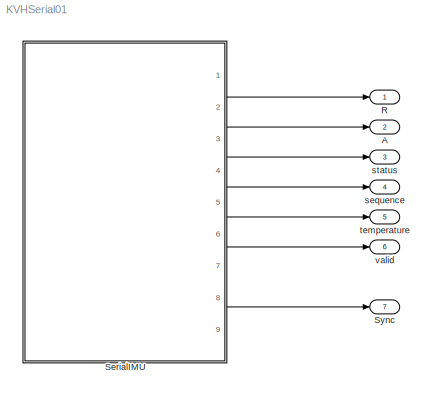
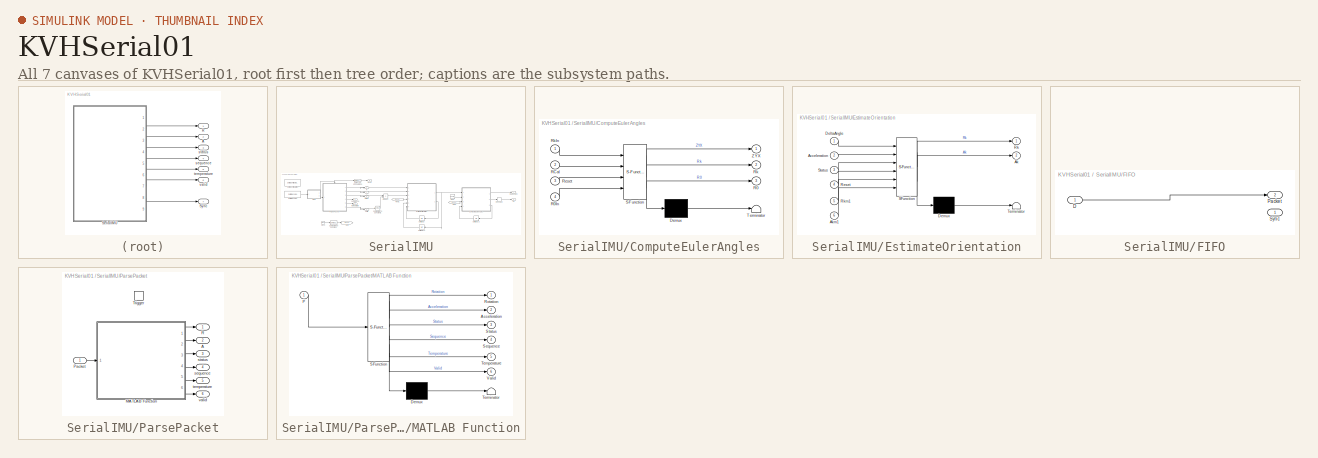
[diagram: thumbnail index - all 7 canvases of the model, root first then tree order]
MODEL KVHSerial01
KIND model
BLOCK [Outport] A
  IconDisplay = Port number
  Port = 2
  SID = 3
BLOCK [Outport] R
  IconDisplay = Port number
  SID = 2
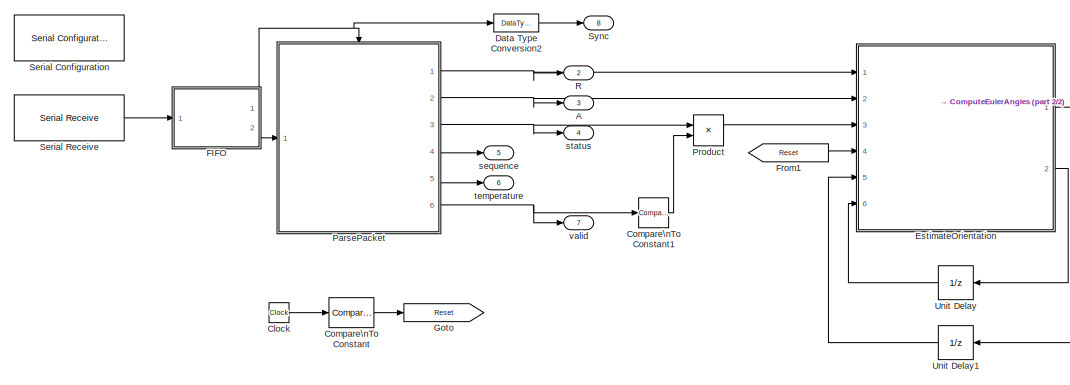
[diagram: SerialIMU - part 1/2, left side, full height]
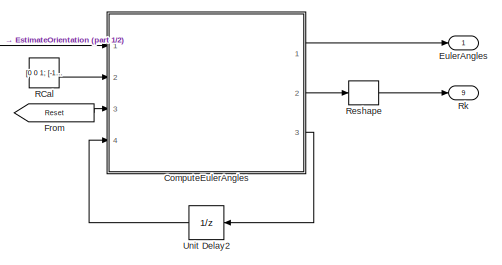
[diagram: SerialIMU - part 2/2, middle right region]
BLOCK [SubSystem] SerialIMU
  AncestorBlock = marlo_lib_v01/SerialIMU
  FunctionWithSeparateData = off
  MaskHideContents = off
  MinAlgLoopOccurrences = off
  Opaque = off
  Ports = [0, 9]
  PropExecContextOutsideSubsystem = off
  RTWSystemCode = Auto
  RequestExecContextInheritance = off
  SID = 1
BLOCK [Outport] SerialIMU/A
  IconDisplay = Port number
  Port = 3
  SID = 1:5831
BLOCK [Clock] SerialIMU/Clock
  SID = 1:5880
BLOCK [Reference] SerialIMU/Compare\nTo Constant  REF=simulink/Logic and Bit\nOperations/Compare\nTo Constant
  OutDataTypeStr = uint8
  Ports = [1, 1]
  SID = 1:5881
  SourceBlock = simulink/Logic and Bit\nOperations/Compare\nTo Constant
  SourceType = Compare To Constant
  ZeroCross = on
  const = 0.2
  relop = <
BLOCK [Reference] SerialIMU/Compare\nTo Constant1  REF=simulink/Logic and Bit\nOperations/Compare\nTo Constant
  OutDataTypeStr = uint8
  Ports = [1, 1]
  SID = 1:5882
  SourceBlock = simulink/Logic and Bit\nOperations/Compare\nTo Constant
  SourceType = Compare To Constant
  ZeroCross = on
  const = 1
  relop = ==
BLOCK [SubSystem] SerialIMU/ComputeEulerAngles
  ErrorFcn = Stateflow.Translate.translate
  FunctionWithSeparateData = off
  MaskDescription = Embedded MATLAB block
  MaskDisplay = bgColor = Simulink.Root.ColorString2Rgb(get_param(gcbh, 'BackgroundColor')); image(imread('private/eml_membrane_16.png','png','BackgroundColor',bgColor(1:3)),'center'); disp([10 10 'fcn']);
  MaskHideContents = off
  MaskIconFrame = on
  MaskIconOpaque = off
  MaskIconRotate = none
  MaskIconUnits = normalized
  MaskPortRotate = default
  MaskSelfModifiable = on
  MaskType = Stateflow
  MinAlgLoopOccurrences = off
  Opaque = off
  PermitHierarchicalResolution = ExplicitOnly
  Ports = [4, 3]
  PropExecContextOutsideSubsystem = off
  RTWSystemCode = Auto
  RequestExecContextInheritance = off
  SFBlockType = MATLAB Function
  SID = 1:5883
  TreatAsAtomicUnit = on
BLOCK [Demux] SerialIMU/ComputeEulerAngles/ Demux 
  Outputs = 1
  Ports = [1, 1]
  SID = 1:5883::20
BLOCK [S-Function] SerialIMU/ComputeEulerAngles/ SFunction 
  EnableBusSupport = on
  FunctionName = sf_sfun
  PortCounts = [4 4]
  Ports = [4, 4]
  SID = 1:5883::19
  Tag = Stateflow S-Function KVHSerial01 1
BLOCK [Terminator] SerialIMU/ComputeEulerAngles/ Terminator 
  SID = 1:5883::22
BLOCK [Outport] SerialIMU/ComputeEulerAngles/R0
  IconDisplay = Port number
  Port = 3
  SID = 1:5883::32
BLOCK [Inport] SerialIMU/ComputeEulerAngles/R0In
  IconDisplay = Port number
  Port = 4
  SID = 1:5883::30
BLOCK [Inport] SerialIMU/ComputeEulerAngles/RCal
  IconDisplay = Port number
  Port = 2
  SID = 1:5883::1
BLOCK [Inport] SerialIMU/ComputeEulerAngles/Reset
  IconDisplay = Port number
  Port = 3
  SID = 1:5883::24
BLOCK [Outport] SerialIMU/ComputeEulerAngles/Rk
  IconDisplay = Port number
  Port = 2
  SID = 1:5883::34
BLOCK [Inport] SerialIMU/ComputeEulerAngles/RkIn
  IconDisplay = Port number
  SID = 1:5883::33
BLOCK [Outport] SerialIMU/ComputeEulerAngles/ZYX
  IconDisplay = Port number
  SID = 1:5883::27
BLOCK [DataTypeConversion] SerialIMU/Data Type Conversion2
  OutDataTypeStr = double
  RndMeth = Floor
  SID = 1:5869
  SaturateOnIntegerOverflow = off
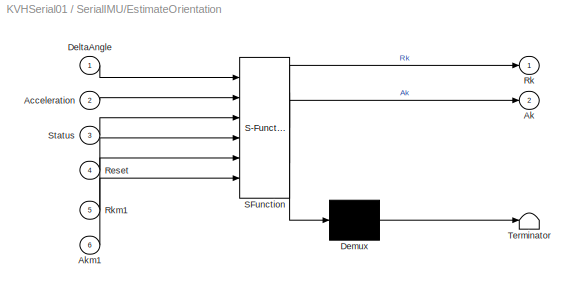
BLOCK [SubSystem] SerialIMU/EstimateOrientation
  ErrorFcn = Stateflow.Translate.translate
  FunctionWithSeparateData = off
  MaskDescription = Embedded MATLAB block
  MaskDisplay = bgColor = Simulink.Root.ColorString2Rgb(get_param(gcbh, 'BackgroundColor')); image(imread('private/eml_membrane_16.png','png','BackgroundColor',bgColor(1:3)),'center'); disp([10 10 'fcn']);
  MaskHideContents = off
  MaskIconFrame = on
  MaskIconOpaque = off
  MaskIconRotate = none
  MaskIconUnits = normalized
  MaskPortRotate = default
  MaskSelfModifiable = on
  MaskType = Stateflow
  MinAlgLoopOccurrences = off
  Opaque = off
  PermitHierarchicalResolution = ExplicitOnly
  Ports = [6, 2]
  PropExecContextOutsideSubsystem = off
  RTWSystemCode = Auto
  RequestExecContextInheritance = off
  SFBlockType = MATLAB Function
  SID = 1:5884
  TreatAsAtomicUnit = on
BLOCK [Demux] SerialIMU/EstimateOrientation/ Demux 
  Outputs = 1
  Ports = [1, 1]
  SID = 1:5884::20
BLOCK [S-Function] SerialIMU/EstimateOrientation/ SFunction 
  EnableBusSupport = on
  FunctionName = sf_sfun
  PortCounts = [6 3]
  Ports = [6, 3]
  SID = 1:5884::19
  Tag = Stateflow S-Function KVHSerial01 2
BLOCK [Terminator] SerialIMU/EstimateOrientation/ Terminator 
  SID = 1:5884::22
BLOCK [Inport] SerialIMU/EstimateOrientation/Acceleration
  IconDisplay = Port number
  Port = 2
  SID = 1:5884::1
BLOCK [Outport] SerialIMU/EstimateOrientation/Ak
  IconDisplay = Port number
  Port = 2
  SID = 1:5884::27
BLOCK [Inport] SerialIMU/EstimateOrientation/Akm1
  IconDisplay = Port number
  Port = 6
  SID = 1:5884::26
BLOCK [Inport] SerialIMU/EstimateOrientation/DeltaAngle
  IconDisplay = Port number
  SID = 1:5884::23
BLOCK [Inport] SerialIMU/EstimateOrientation/Reset
  IconDisplay = Port number
  Port = 4
  SID = 1:5884::24
BLOCK [Outport] SerialIMU/EstimateOrientation/Rk
  IconDisplay = Port number
  SID = 1:5884::5
BLOCK [Inport] SerialIMU/EstimateOrientation/Rkm1
  IconDisplay = Port number
  Port = 5
  SID = 1:5884::25
BLOCK [Inport] SerialIMU/EstimateOrientation/Status
  IconDisplay = Port number
  Port = 3
  SID = 1:5884::28
BLOCK [Outport] SerialIMU/EulerAngles
  IconDisplay = Port number
  SID = 1:5898
BLOCK [SubSystem] SerialIMU/FIFO
  FunctionWithSeparateData = off
  MaskHideContents = off
  MinAlgLoopOccurrences = off
  Opaque = off
  Ports = [1, 2]
  PropExecContextOutsideSubsystem = off
  RTWSystemCode = Auto
  RequestExecContextInheritance = off
  SID = 1:5846
BLOCK [Inport] SerialIMU/FIFO/D
  IconDisplay = Port number
  SID = 1:5847
BLOCK [Outport] SerialIMU/FIFO/Packet
  IconDisplay = Port number
  Port = 2
  SID = 1:5848
BLOCK [Outport] SerialIMU/FIFO/Sync
  IconDisplay = Port number
  SID = 1:5852
BLOCK [From] SerialIMU/From
  GotoTag = Reset
  SID = 1:5885
BLOCK [From] SerialIMU/From1
  GotoTag = Reset
  SID = 1:5890
BLOCK [Goto] SerialIMU/Goto
  GotoTag = Reset
  SID = 1:5891
BLOCK [SubSystem] SerialIMU/ParsePacket
  FunctionWithSeparateData = off
  MaskHideContents = off
  MinAlgLoopOccurrences = off
  Opaque = off
  Ports = [1, 6, 0, 1]
  PropExecContextOutsideSubsystem = off
  RTWSystemCode = Auto
  RequestExecContextInheritance = off
  SID = 1:5857
BLOCK [Outport] SerialIMU/ParsePacket/A
  IconDisplay = Port number
  Port = 2
  SID = 1:5859
BLOCK [SubSystem] SerialIMU/ParsePacket/MATLAB Function
  ErrorFcn = Stateflow.Translate.translate
  FunctionWithSeparateData = off
  MaskDescription = Embedded MATLAB block
  MaskDisplay = bgColor = Simulink.Root.ColorString2Rgb(get_param(gcbh, 'BackgroundColor')); image(imread('private/eml_membrane_16.png','png','BackgroundColor',bgColor(1:3)),'center'); disp([10 10 'KVHParsePacket']);
  MaskHideContents = off
  MaskIconFrame = on
  MaskIconOpaque = off
  MaskIconRotate = none
  MaskIconUnits = normalized
  MaskPortRotate = default
  MaskSelfModifiable = on
  MaskType = Stateflow
  MinAlgLoopOccurrences = off
  Opaque = off
  PermitHierarchicalResolution = ExplicitOnly
  Ports = [1, 6]
  PropExecContextOutsideSubsystem = off
  RTWSystemCode = Auto
  RequestExecContextInheritance = off
  SFBlockType = MATLAB Function
  SID = 1:5826
  TreatAsAtomicUnit = on
BLOCK [Demux] SerialIMU/ParsePacket/MATLAB Function/ Demux 
  Outputs = 1
  Ports = [1, 1]
  SID = 1:5826::26
BLOCK [S-Function] SerialIMU/ParsePacket/MATLAB Function/ SFunction 
  EnableBusSupport = on
  FunctionName = sf_sfun
  PortCounts = [1 7]
  Ports = [1, 7]
  SID = 1:5826::25
  Tag = Stateflow S-Function KVHSerial01 4
BLOCK [Terminator] SerialIMU/ParsePacket/MATLAB Function/ Terminator 
  SID = 1:5826::28
BLOCK [Outport] SerialIMU/ParsePacket/MATLAB Function/Acceleration
  IconDisplay = Port number
  Port = 2
  SID = 1:5826::23
BLOCK [Inport] SerialIMU/ParsePacket/MATLAB Function/P
  IconDisplay = Port number
  SID = 1:5826::1
BLOCK [Outport] SerialIMU/ParsePacket/MATLAB Function/Rotation
  IconDisplay = Port number
  SID = 1:5826::5
BLOCK [Outport] SerialIMU/ParsePacket/MATLAB Function/Sequence
  IconDisplay = Port number
  Port = 4
  SID = 1:5826::30
BLOCK [Outport] SerialIMU/ParsePacket/MATLAB Function/Status
  IconDisplay = Port number
  Port = 3
  SID = 1:5826::29
BLOCK [Outport] SerialIMU/ParsePacket/MATLAB Function/Temperature
  IconDisplay = Port number
  Port = 5
  SID = 1:5826::31
BLOCK [Outport] SerialIMU/ParsePacket/MATLAB Function/Valid
  IconDisplay = Port number
  Port = 6
  SID = 1:5826::24
BLOCK [Inport] SerialIMU/ParsePacket/Packet
  IconDisplay = Port number
  SID = 1:5861
BLOCK [Outport] SerialIMU/ParsePacket/R
  IconDisplay = Port number
  SID = 1:5858
BLOCK [TriggerPort] SerialIMU/ParsePacket/Trigger
  PortDimensions = 1
  Ports = []
  SID = 1:5865
  StatesWhenEnabling = held
BLOCK [Outport] SerialIMU/ParsePacket/sequence
  IconDisplay = Port number
  Port = 4
  SID = 1:5862
BLOCK [Outport] SerialIMU/ParsePacket/status
  IconDisplay = Port number
  Port = 3
  SID = 1:5860
BLOCK [Outport] SerialIMU/ParsePacket/temperature
  IconDisplay = Port number
  Port = 5
  SID = 1:5863
BLOCK [Outport] SerialIMU/ParsePacket/valid
  IconDisplay = Port number
  Port = 6
  SID = 1:5864
BLOCK [Product] SerialIMU/Product
  InputSameDT = off
  OutDataTypeStr = Inherit: Inherit via internal rule
  Ports = [2, 1]
  SID = 1:5892
  SaturateOnIntegerOverflow = off
BLOCK [Outport] SerialIMU/R
  IconDisplay = Port number
  Port = 2
  SID = 1:5830
BLOCK [Constant] SerialIMU/RCal
  SID = 1:5893
  Value = [0 0 1; [-1 -1; 1 -1]/sqrt(2) [0; 0]]'
BLOCK [Reshape] SerialIMU/Reshape
  Ports = [1, 1]
  SID = 1:5894
BLOCK [Outport] SerialIMU/Rk
  IconDisplay = Port number
  Port = 9
  SID = 1:5899
BLOCK [Reference] SerialIMU/Serial Configuration  REF=instrumentlib/Serial Configuration
  BaudRate = 460800
  ByteOrder = LittleEndian
  ComPort = COM5
  ComPortMenu = <Please select a port...>
  DataBits = 8
  FlowControl = none
  ObjConstructor = serial('COM5');
  Parity = none
  Ports = []
  Priority = -200000
  SID = 1:5841
  SourceBlock = instrumentlib/Serial Configuration
  SourceType = Serial Configuration
  StopBits = 1
  Timeout = 10
BLOCK [Reference] SerialIMU/Serial Receive  REF=instrumentlib/Serial Receive
  ActionDataUnavailable = Output last received value
  ComPort = COM5
  ComPortMenu = <Please select a port...>
  CustomValue = 0
  DataSize = 500
  DataType = uint8
  EnableBlockingMode = on
  ObjConstructor = serial('COM5');
  Ports = [0, 1]
  SID = 1:5840
  SampleTime = 0.01
  SourceBlock = instrumentlib/Serial Receive
  SourceType = Serial Receive
  Terminator = <none>
BLOCK [Outport] SerialIMU/Sync
  IconDisplay = Port number
  Port = 8
  SID = 1:5866
BLOCK [UnitDelay] SerialIMU/Unit Delay
  InputProcessing = Elements as channels (sample based)
  SID = 1:5895
  SampleTime = -1
  X0 = [0; 0; 0]
BLOCK [UnitDelay] SerialIMU/Unit Delay1
  InputProcessing = Elements as channels (sample based)
  SID = 1:5896
  SampleTime = -1
  X0 = zeros(3,3)
BLOCK [UnitDelay] SerialIMU/Unit Delay2
  InputProcessing = Elements as channels (sample based)
  SID = 1:5897
  SampleTime = -1
  X0 = zeros(3,3)
BLOCK [Outport] SerialIMU/sequence
  IconDisplay = Port number
  Port = 5
  SID = 1:5839
BLOCK [Outport] SerialIMU/status
  IconDisplay = Port number
  Port = 4
  SID = 1:5837
BLOCK [Outport] SerialIMU/temperature
  IconDisplay = Port number
  Port = 6
  SID = 1:5838
BLOCK [Outport] SerialIMU/valid
  IconDisplay = Port number
  Port = 7
  SID = 1:5832
BLOCK [Outport] Sync
  IconDisplay = Port number
  Port = 7
  SID = 10
BLOCK [Outport] sequence
  IconDisplay = Port number
  Port = 4
  SID = 5
BLOCK [Outport] status
  IconDisplay = Port number
  Port = 3
  SID = 4
BLOCK [Outport] temperature
  IconDisplay = Port number
  Port = 5
  SID = 6
BLOCK [Outport] valid
  IconDisplay = Port number
  Port = 6
  SID = 7
LINE SerialIMU/Clock:1 -> SerialIMU/Compare\nTo Constant:1
LINE SerialIMU/Compare\nTo Constant1:1 -> SerialIMU/Product:2
LINE SerialIMU/Compare\nTo Constant:1 -> SerialIMU/Goto:1
LINE SerialIMU/ComputeEulerAngles/ Demux :1 -> SerialIMU/ComputeEulerAngles/ Terminator :1
LINE SerialIMU/ComputeEulerAngles/ SFunction :1 -> SerialIMU/ComputeEulerAngles/ Demux :1
LINE SerialIMU/ComputeEulerAngles/ SFunction :2 -> SerialIMU/ComputeEulerAngles/ZYX:1
LINE SerialIMU/ComputeEulerAngles/ SFunction :3 -> SerialIMU/ComputeEulerAngles/Rk:1
LINE SerialIMU/ComputeEulerAngles/ SFunction :4 -> SerialIMU/ComputeEulerAngles/R0:1
LINE SerialIMU/ComputeEulerAngles/R0In:1 -> SerialIMU/ComputeEulerAngles/ SFunction :4
LINE SerialIMU/ComputeEulerAngles/RCal:1 -> SerialIMU/ComputeEulerAngles/ SFunction :2
LINE SerialIMU/ComputeEulerAngles/Reset:1 -> SerialIMU/ComputeEulerAngles/ SFunction :3
LINE SerialIMU/ComputeEulerAngles/RkIn:1 -> SerialIMU/ComputeEulerAngles/ SFunction :1
LINE SerialIMU/ComputeEulerAngles:1 -> SerialIMU/EulerAngles:1
LINE SerialIMU/ComputeEulerAngles:2 -> SerialIMU/Reshape:1
LINE SerialIMU/ComputeEulerAngles:3 -> SerialIMU/Unit Delay2:1
LINE SerialIMU/Data Type Conversion2:1 -> SerialIMU/Sync:1
LINE SerialIMU/EstimateOrientation/ Demux :1 -> SerialIMU/EstimateOrientation/ Terminator :1
LINE SerialIMU/EstimateOrientation/ SFunction :1 -> SerialIMU/EstimateOrientation/ Demux :1
LINE SerialIMU/EstimateOrientation/ SFunction :2 -> SerialIMU/EstimateOrientation/Rk:1
LINE SerialIMU/EstimateOrientation/ SFunction :3 -> SerialIMU/EstimateOrientation/Ak:1
LINE SerialIMU/EstimateOrientation/Acceleration:1 -> SerialIMU/EstimateOrientation/ SFunction :2
LINE SerialIMU/EstimateOrientation/Akm1:1 -> SerialIMU/EstimateOrientation/ SFunction :6
LINE SerialIMU/EstimateOrientation/DeltaAngle:1 -> SerialIMU/EstimateOrientation/ SFunction :1
LINE SerialIMU/EstimateOrientation/Reset:1 -> SerialIMU/EstimateOrientation/ SFunction :4
LINE SerialIMU/EstimateOrientation/Rkm1:1 -> SerialIMU/EstimateOrientation/ SFunction :5
LINE SerialIMU/EstimateOrientation/Status:1 -> SerialIMU/EstimateOrientation/ SFunction :3
NET SerialIMU/EstimateOrientation:1 -> SerialIMU/ComputeEulerAngles:1, SerialIMU/Unit Delay1:1
LINE SerialIMU/EstimateOrientation:2 -> SerialIMU/Unit Delay:1
LINE SerialIMU/FIFO/D:1 -> SerialIMU/FIFO/Packet:1
NET SerialIMU/FIFO:1 -> SerialIMU/Data Type Conversion2:1, SerialIMU/ParsePacket:trigger
LINE SerialIMU/FIFO:2 -> SerialIMU/ParsePacket:1
LINE SerialIMU/From1:1 -> SerialIMU/EstimateOrientation:4
LINE SerialIMU/From:1 -> SerialIMU/ComputeEulerAngles:3
LINE SerialIMU/ParsePacket/MATLAB Function/ Demux :1 -> SerialIMU/ParsePacket/MATLAB Function/ Terminator :1
LINE SerialIMU/ParsePacket/MATLAB Function/ SFunction :1 -> SerialIMU/ParsePacket/MATLAB Function/ Demux :1
LINE SerialIMU/ParsePacket/MATLAB Function/ SFunction :2 -> SerialIMU/ParsePacket/MATLAB Function/Rotation:1
LINE SerialIMU/ParsePacket/MATLAB Function/ SFunction :3 -> SerialIMU/ParsePacket/MATLAB Function/Acceleration:1
LINE SerialIMU/ParsePacket/MATLAB Function/ SFunction :4 -> SerialIMU/ParsePacket/MATLAB Function/Status:1
LINE SerialIMU/ParsePacket/MATLAB Function/ SFunction :5 -> SerialIMU/ParsePacket/MATLAB Function/Sequence:1
LINE SerialIMU/ParsePacket/MATLAB Function/ SFunction :6 -> SerialIMU/ParsePacket/MATLAB Function/Temperature:1
LINE SerialIMU/ParsePacket/MATLAB Function/ SFunction :7 -> SerialIMU/ParsePacket/MATLAB Function/Valid:1
LINE SerialIMU/ParsePacket/MATLAB Function/P:1 -> SerialIMU/ParsePacket/MATLAB Function/ SFunction :1
LINE SerialIMU/ParsePacket/MATLAB Function:1 -> SerialIMU/ParsePacket/R:1
LINE SerialIMU/ParsePacket/MATLAB Function:2 -> SerialIMU/ParsePacket/A:1
LINE SerialIMU/ParsePacket/MATLAB Function:3 -> SerialIMU/ParsePacket/status:1
LINE SerialIMU/ParsePacket/MATLAB Function:4 -> SerialIMU/ParsePacket/sequence:1
LINE SerialIMU/ParsePacket/MATLAB Function:5 -> SerialIMU/ParsePacket/temperature:1
LINE SerialIMU/ParsePacket/MATLAB Function:6 -> SerialIMU/ParsePacket/valid:1
LINE SerialIMU/ParsePacket/Packet:1 -> SerialIMU/ParsePacket/MATLAB Function:1
NET SerialIMU/ParsePacket:1 -> SerialIMU/EstimateOrientation:1, SerialIMU/R:1
NET SerialIMU/ParsePacket:2 -> SerialIMU/A:1, SerialIMU/EstimateOrientation:2
NET SerialIMU/ParsePacket:3 -> SerialIMU/Product:1, SerialIMU/status:1
LINE SerialIMU/ParsePacket:4 -> SerialIMU/sequence:1
LINE SerialIMU/ParsePacket:5 -> SerialIMU/temperature:1
NET SerialIMU/ParsePacket:6 -> SerialIMU/Compare\nTo Constant1:1, SerialIMU/valid:1
LINE SerialIMU/Product:1 -> SerialIMU/EstimateOrientation:3
LINE SerialIMU/RCal:1 -> SerialIMU/ComputeEulerAngles:2
LINE SerialIMU/Reshape:1 -> SerialIMU/Rk:1
LINE SerialIMU/Serial Receive:1 -> SerialIMU/FIFO:1
LINE SerialIMU/Unit Delay1:1 -> SerialIMU/EstimateOrientation:5
LINE SerialIMU/Unit Delay2:1 -> SerialIMU/ComputeEulerAngles:4
LINE SerialIMU/Unit Delay:1 -> SerialIMU/EstimateOrientation:6
LINE SerialIMU:2 -> R:1
LINE SerialIMU:3 -> A:1
LINE SerialIMU:4 -> status:1
LINE SerialIMU:5 -> sequence:1
LINE SerialIMU:6 -> temperature:1
LINE SerialIMU:7 -> valid:1
LINE SerialIMU:8 -> Sync:1
note: NET lines group one-source signal fan-out (src -> all destinations, sorted); 1:1 wires keep LINE
CHART SerialIMU/ComputeEulerAngles states=1 transitions=1
  STATE_LABEL 'eML_blk_kernel()'
CHART SerialIMU/EstimateOrientation states=1 transitions=1
  STATE_LABEL 'eML_blk_kernel()'
CHART SerialIMU/ParsePacket/MATLAB Function states=1 transitions=1
  STATE_LABEL 'eML_blk_kernel()'
